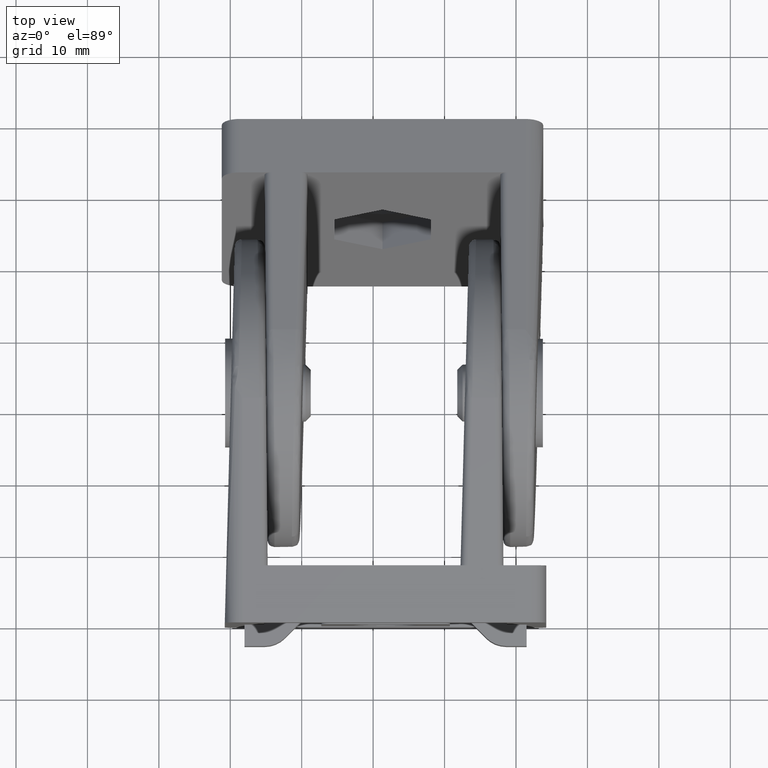
[diagram: clean part render]
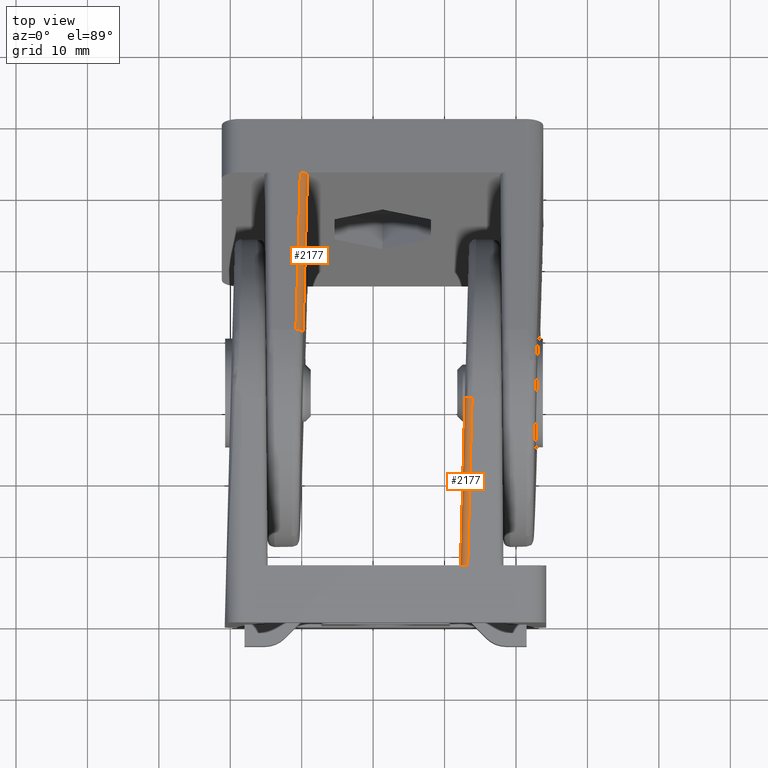
[diagram: same view with one multi-face feature highlighted, each face labeled with its STEP entity id]
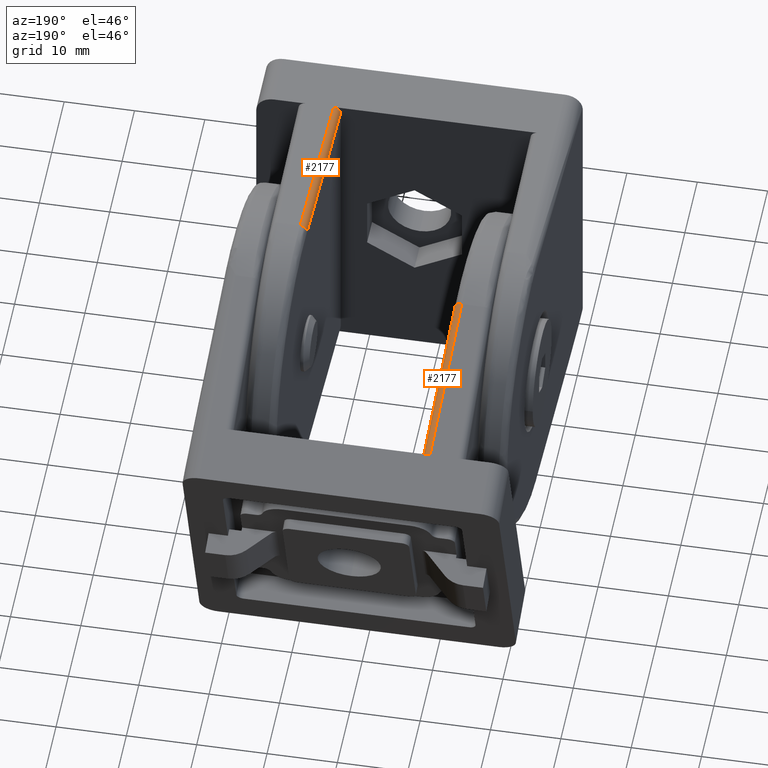
[diagram: same view with one multi-face feature highlighted, each face labeled with its STEP entity id]
A machine part, top view. The highlighted faces form ONE feature: a constant-radius fillet chain: 2 tangent blend faces with common blend radius 1 mm. The faces share edges in the B-rep.
A second angle (auxiliary view) of the same feature is appended — it is thin or edge-on in the first view.
Their STEP definitions:
[1] entity #2177 (Cylinder):
#66=LINE('',#3335,#256);
#84=LINE('',#3553,#274);
#256=VECTOR('',#2553,23.5080556235354);
#274=VECTOR('',#2581,23.5342415451046);
#523=ELLIPSE('',#2296,1.00034279249061,0.999999999999746);
#544=CYLINDRICAL_SURFACE('',#2345,1.);
#621=FACE_OUTER_BOUND('',#758,.T.);
#758=EDGE_LOOP('',(#1750,#1751,#1752,#1753));
#884=CIRCLE('',#2346,1.);
#996=VERTEX_POINT('',#3332);
#997=VERTEX_POINT('',#3334);
#1012=VERTEX_POINT('',#3523);
#1014=VERTEX_POINT('',#3551);
#1209=EDGE_CURVE('',#996,#997,#66,.T.);
#1238=EDGE_CURVE('',#1014,#1012,#84,.T.);
#1245=EDGE_CURVE('',#997,#1014,#523,.T.);
#1316=EDGE_CURVE('',#1012,#996,#884,.T.);
#1750=ORIENTED_EDGE('',*,*,#1245,.F.);
#1751=ORIENTED_EDGE('',*,*,#1209,.F.);
#1752=ORIENTED_EDGE('',*,*,#1316,.F.);
#1753=ORIENTED_EDGE('',*,*,#1238,.F.);
#2177=ADVANCED_FACE('',(#621),#544,.T.);
#2296=AXIS2_PLACEMENT_3D('',#3614,#2593,#2594);
#2345=AXIS2_PLACEMENT_3D('',#3988,#2739,#2740);
#2346=AXIS2_PLACEMENT_3D('',#3989,#2741,#2742);
#2553=DIRECTION('',(-0.0261769483078657,-0.999657324975557,0.));
#2581=DIRECTION('',(0.0261769483078657,0.999657324975557,0.));
#2593=DIRECTION('center_axis',(5.35879401227045E-15,-1.,-5.36063096661798E-15));
#2594=DIRECTION('ref_axis',(1.,5.3587940105283E-15,3.24990784734047E-10));
#2739=DIRECTION('center_axis',(0.0261769483078657,0.999657324975558,0.));
#2740=DIRECTION('ref_axis',(-0.999657324975558,0.0261769483078657,0.));
#2741=DIRECTION('center_axis',(0.0261769483078655,0.999657324975558,4.54097667590857E-17));
#2742=DIRECTION('ref_axis',(-0.999657324975558,0.0261769483078655,1.92592994438724E-34));
#3332=CARTESIAN_POINT('',(12.1157119493666,31.5,45.));
#3334=CARTESIAN_POINT('',(11.5003427924909,8.,45.));
#3335=CARTESIAN_POINT('',(11.4996573249756,7.97382305169213,45.));
#3523=CARTESIAN_POINT('',(11.116054624391,31.5261769483079,44.));
#3551=CARTESIAN_POINT('',(10.5,8.,44.));
#3553=CARTESIAN_POINT('',(11.1153691568757,31.5,44.));
#3614=CARTESIAN_POINT('Origin',(11.5003427924906,8.00000000000001,44.0000000000003));
#3988=CARTESIAN_POINT('Origin',(11.5078801164481,8.28783878914971,44.));
#3989=CARTESIAN_POINT('Origin',(12.1157119493666,31.5,44.));
[2] entity #2177 (Cylinder):
#66=LINE('',#3335,#256);
#84=LINE('',#3553,#274);
#256=VECTOR('',#2553,23.5080556235354);
#274=VECTOR('',#2581,23.5342415451046);
#523=ELLIPSE('',#2296,1.00034279249061,0.999999999999746);
#544=CYLINDRICAL_SURFACE('',#2345,1.);
#621=FACE_OUTER_BOUND('',#758,.T.);
#758=EDGE_LOOP('',(#1750,#1751,#1752,#1753));
#884=CIRCLE('',#2346,1.);
#996=VERTEX_POINT('',#3332);
#997=VERTEX_POINT('',#3334);
#1012=VERTEX_POINT('',#3523);
#1014=VERTEX_POINT('',#3551);
#1209=EDGE_CURVE('',#996,#997,#66,.T.);
#1238=EDGE_CURVE('',#1014,#1012,#84,.T.);
#1245=EDGE_CURVE('',#997,#1014,#523,.T.);
#1316=EDGE_CURVE('',#1012,#996,#884,.T.);
#1750=ORIENTED_EDGE('',*,*,#1245,.F.);
#1751=ORIENTED_EDGE('',*,*,#1209,.F.);
#1752=ORIENTED_EDGE('',*,*,#1316,.F.);
#1753=ORIENTED_EDGE('',*,*,#1238,.F.);
#2177=ADVANCED_FACE('',(#621),#544,.T.);
#2296=AXIS2_PLACEMENT_3D('',#3614,#2593,#2594);
#2345=AXIS2_PLACEMENT_3D('',#3988,#2739,#2740);
#2346=AXIS2_PLACEMENT_3D('',#3989,#2741,#2742);
#2553=DIRECTION('',(-0.0261769483078657,-0.999657324975557,0.));
#2581=DIRECTION('',(0.0261769483078657,0.999657324975557,0.));
#2593=DIRECTION('center_axis',(5.35879401227045E-15,-1.,-5.36063096661798E-15));
#2594=DIRECTION('ref_axis',(1.,5.3587940105283E-15,3.24990784734047E-10));
#2739=DIRECTION('center_axis',(0.0261769483078657,0.999657324975558,0.));
#2740=DIRECTION('ref_axis',(-0.999657324975558,0.0261769483078657,0.));
#2741=DIRECTION('center_axis',(0.0261769483078655,0.999657324975558,4.54097667590857E-17));
#2742=DIRECTION('ref_axis',(-0.999657324975558,0.0261769483078655,1.92592994438724E-34));
#3332=CARTESIAN_POINT('',(12.1157119493666,31.5,45.));
#3334=CARTESIAN_POINT('',(11.5003427924909,8.,45.));
#3335=CARTESIAN_POINT('',(11.4996573249756,7.97382305169213,45.));
#3523=CARTESIAN_POINT('',(11.116054624391,31.5261769483079,44.));
#3551=CARTESIAN_POINT('',(10.5,8.,44.));
#3553=CARTESIAN_POINT('',(11.1153691568757,31.5,44.));
#3614=CARTESIAN_POINT('Origin',(11.5003427924906,8.00000000000001,44.0000000000003));
#3988=CARTESIAN_POINT('Origin',(11.5078801164481,8.28783878914971,44.));
#3989=CARTESIAN_POINT('Origin',(12.1157119493666,31.5,44.));